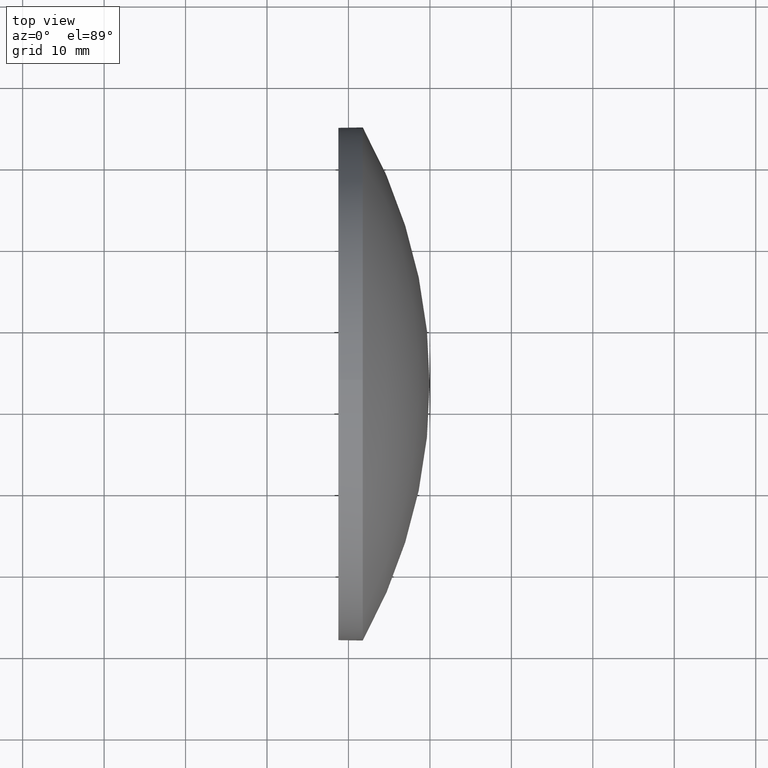
[diagram: clean part render]
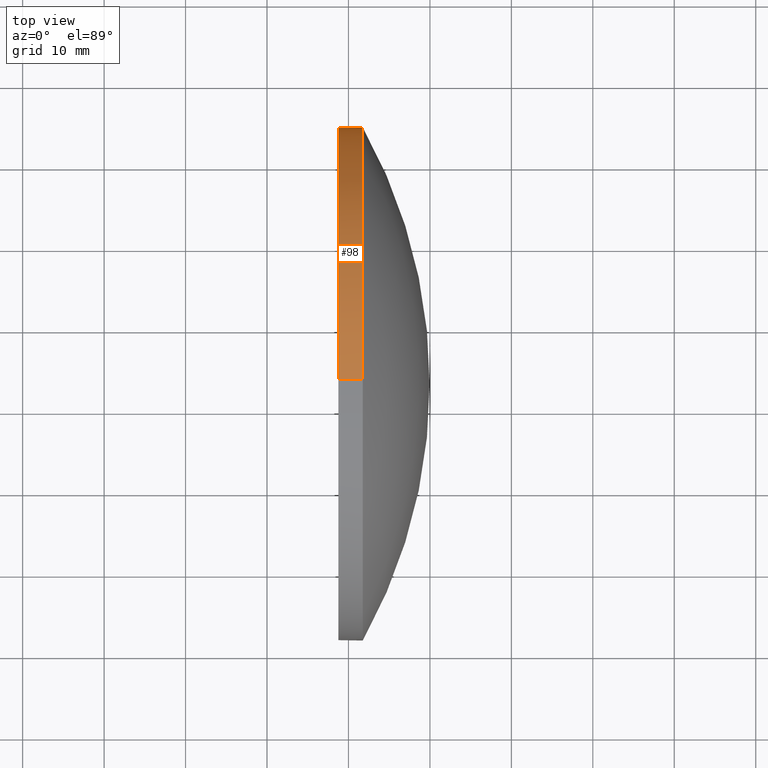
[diagram: same view with one face highlighted and labeled with its STEP entity id]
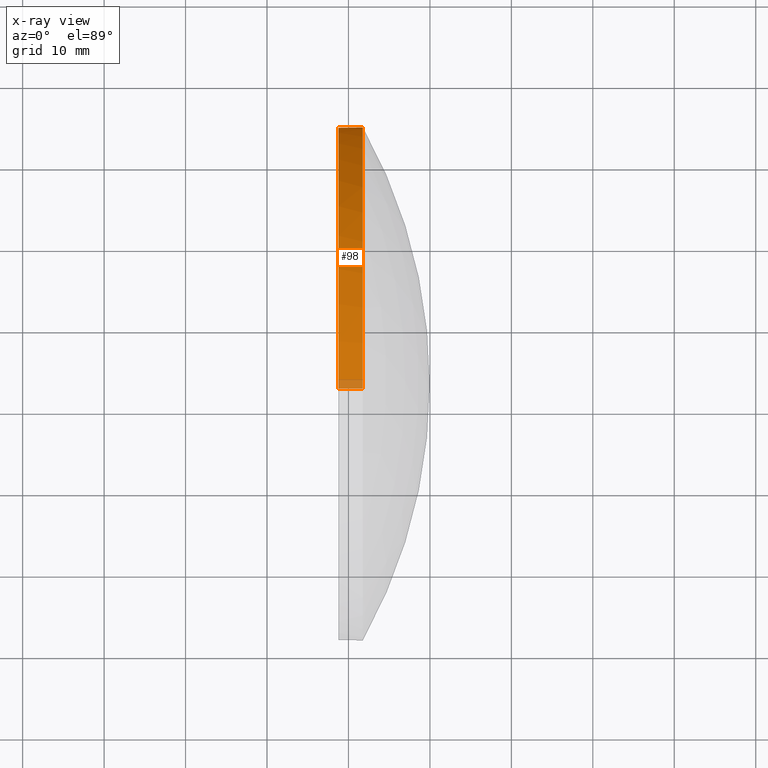
[diagram: x-ray of the same camera — body ghosted, the highlighted face saturated]
A machine part, top view. The second image highlights one B-rep face of the part: STEP entity #98.
The next image is the same camera in x-ray: the body ghosted, the highlighted face saturated — about 3% of this face is hidden behind the body in this view.
In plain terms, the highlighted cylindrical surface (partial cylindrical patch) has radius 31.5 mm, axis along (-1, -0, -0).
Its self-contained STEP definition (entity closure, byte-faithful):
#1 = VERTEX_POINT ( 'NONE', #73 ) ;
#4 = CARTESIAN_POINT ( 'NONE',  ( 451.7579245164399700, 33.14734230930400800, 0.0000000000000000000 ) ) ;
#13 = EDGE_CURVE ( 'NONE', #55, #89, #144, .T. ) ;
#14 = EDGE_CURVE ( 'NONE', #81, #55, #76, .T. ) ;
#18 = DIRECTION ( 'NONE',  ( 0.0000000000000000000, 0.0000000000000000000, 1.000000000000000000 ) ) ;
#19 = DIRECTION ( 'NONE',  ( -1.000000000000000000, -0.0000000000000000000, -0.0000000000000000000 ) ) ;
#21 = ORIENTED_EDGE ( 'NONE', *, *, #102, .T. ) ;
#25 = CIRCLE ( 'NONE', #127, 31.50000000000000000 ) ;
#27 = ORIENTED_EDGE ( 'NONE', *, *, #28, .T. ) ;
#28 = EDGE_CURVE ( 'NONE', #81, #1, #69, .T. ) ;
#32 = CARTESIAN_POINT ( 'NONE',  ( 429.7189694546175900, 33.14734230930400800, 0.0000000000000000000 ) ) ;
#37 = CARTESIAN_POINT ( 'NONE',  ( 451.7579245164399700, 33.14734230930401500, -31.50000000000000000 ) ) ;
#38 = AXIS2_PLACEMENT_3D ( 'NONE', #75, #19, #131 ) ;
#44 = LINE ( 'NONE', #79, #160 ) ;
#46 = DIRECTION ( 'NONE',  ( -1.000000000000000000, -0.0000000000000000000, -0.0000000000000000000 ) ) ;
#49 = CARTESIAN_POINT ( 'NONE',  ( 448.7579245164399700, 33.14734230930401500, -31.50000000000000000 ) ) ;
#55 = VERTEX_POINT ( 'NONE', #92 ) ;
#59 = DIRECTION ( 'NONE',  ( -1.000000000000000000, -0.0000000000000000000, -0.0000000000000000000 ) ) ;
#61 = DIRECTION ( 'NONE',  ( -1.000000000000000000, -0.0000000000000000000, -0.0000000000000000000 ) ) ;
#69 = CIRCLE ( 'NONE', #132, 31.50000000000000000 ) ;
#72 = EDGE_LOOP ( 'NONE', ( #21, #94, #153, #150, #27 ) ) ;
#73 = CARTESIAN_POINT ( 'NONE',  ( 451.7579245164399700, 64.64734230930399400, 0.0000000000000000000 ) ) ;
#75 = CARTESIAN_POINT ( 'NONE',  ( 448.7579245164399700, 33.14734230930400800, 0.0000000000000000000 ) ) ;
#76 = LINE ( 'NONE', #161, #143 ) ;
#79 = CARTESIAN_POINT ( 'NONE',  ( 429.7189694546175900, 33.14734230930401500, -31.50000000000000000 ) ) ;
#81 = VERTEX_POINT ( 'NONE', #145 ) ;
#84 = DIRECTION ( 'NONE',  ( -1.000000000000000000, -0.0000000000000000000, -0.0000000000000000000 ) ) ;
#89 = VERTEX_POINT ( 'NONE', #49 ) ;
#92 = CARTESIAN_POINT ( 'NONE',  ( 448.7579245164399700, 33.14734230930400800, 31.50000000000000000 ) ) ;
#94 = ORIENTED_EDGE ( 'NONE', *, *, #115, .T. ) ;
#98 = ADVANCED_FACE ( 'NONE', ( #140 ), #175, .T. ) ;
#102 = EDGE_CURVE ( 'NONE', #1, #182, #25, .T. ) ;
#105 = DIRECTION ( 'NONE',  ( -1.000000000000000000, -0.0000000000000000000, -0.0000000000000000000 ) ) ;
#115 = EDGE_CURVE ( 'NONE', #182, #89, #44, .T. ) ;
#116 = DIRECTION ( 'NONE',  ( 0.0000000000000000000, 0.0000000000000000000, 1.000000000000000000 ) ) ;
#127 = AXIS2_PLACEMENT_3D ( 'NONE', #147, #59, #116 ) ;
#131 = DIRECTION ( 'NONE',  ( 0.0000000000000000000, 0.0000000000000000000, 1.000000000000000000 ) ) ;
#132 = AXIS2_PLACEMENT_3D ( 'NONE', #4, #46, #18 ) ;
#140 = FACE_OUTER_BOUND ( 'NONE', #72, .T. ) ;
#143 = VECTOR ( 'NONE', #105, 1000.000000000000000 ) ;
#144 = CIRCLE ( 'NONE', #38, 31.50000000000000000 ) ;
#145 = CARTESIAN_POINT ( 'NONE',  ( 451.7579245164399700, 33.14734230930400800, 31.50000000000000000 ) ) ;
#147 = CARTESIAN_POINT ( 'NONE',  ( 451.7579245164399700, 33.14734230930400800, 0.0000000000000000000 ) ) ;
#150 = ORIENTED_EDGE ( 'NONE', *, *, #14, .F. ) ;
#153 = ORIENTED_EDGE ( 'NONE', *, *, #13, .F. ) ;
#160 = VECTOR ( 'NONE', #84, 1000.000000000000000 ) ;
#161 = CARTESIAN_POINT ( 'NONE',  ( 429.7189694546175900, 33.14734230930400800, 31.50000000000000000 ) ) ;
#172 = DIRECTION ( 'NONE',  ( 0.0000000000000000000, 0.0000000000000000000, 1.000000000000000000 ) ) ;
#175 = CYLINDRICAL_SURFACE ( 'NONE', #181, 31.50000000000000000 ) ;
#181 = AXIS2_PLACEMENT_3D ( 'NONE', #32, #61, #172 ) ;
#182 = VERTEX_POINT ( 'NONE', #37 ) ;